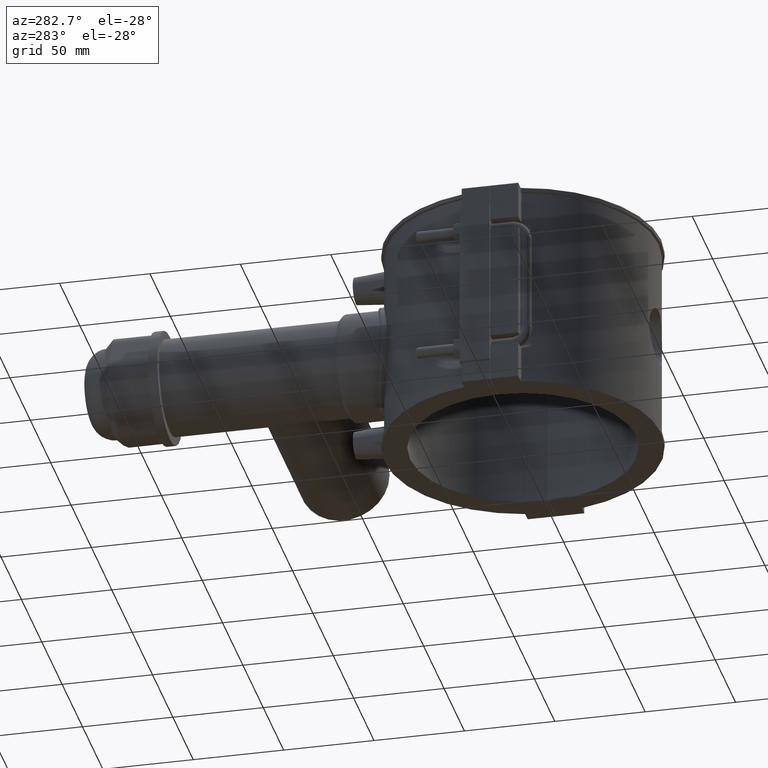
[diagram: clean part render]
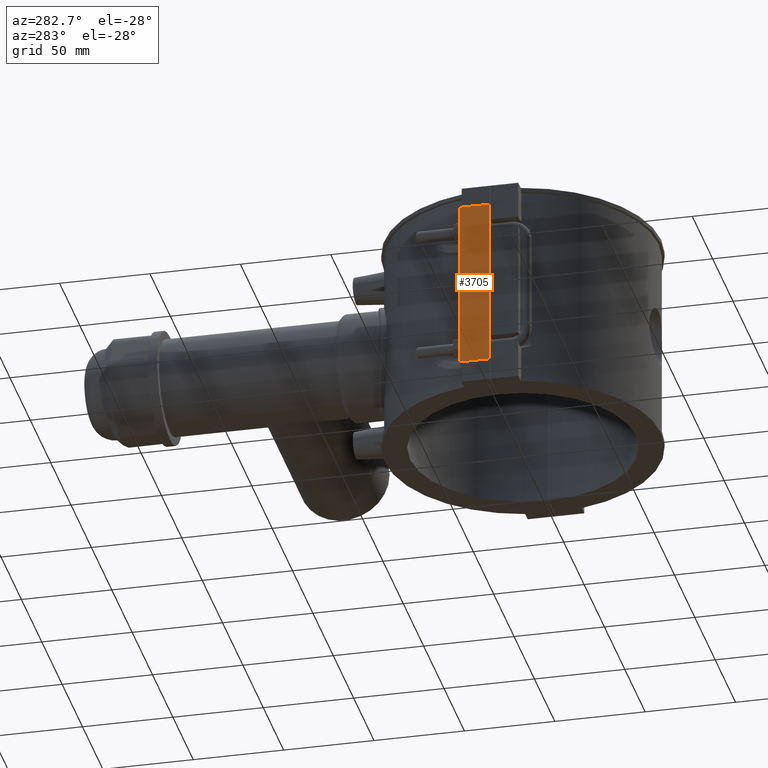
[diagram: same view with one face highlighted and labeled with its STEP entity id]
A machine part, auxiliary view. The second image highlights one B-rep face of the part: STEP entity #3705.
In plain terms, the highlighted planar face has unit normal (1, 0, 0).
Its self-contained STEP definition (entity closure, byte-faithful):
#160=LINE('',#6888,#459);
#163=LINE('',#6894,#462);
#166=LINE('',#6899,#465);
#179=LINE('',#6963,#478);
#459=VECTOR('',#4559,16.5750000000001);
#462=VECTOR('',#4564,16.5750000000001);
#465=VECTOR('',#4569,94.4);
#478=VECTOR('',#4588,94.4);
#969=FACE_OUTER_BOUND('',#1219,.T.);
#1219=EDGE_LOOP('',(#2848,#2849,#2850,#2851));
#1685=VERTEX_POINT('',#6885);
#1686=VERTEX_POINT('',#6887);
#1687=VERTEX_POINT('',#6891);
#1688=VERTEX_POINT('',#6893);
#2108=EDGE_CURVE('',#1686,#1685,#160,.T.);
#2111=EDGE_CURVE('',#1688,#1687,#163,.T.);
#2114=EDGE_CURVE('',#1686,#1687,#166,.T.);
#2133=EDGE_CURVE('',#1685,#1688,#179,.T.);
#2848=ORIENTED_EDGE('',*,*,#2114,.F.);
#2849=ORIENTED_EDGE('',*,*,#2108,.T.);
#2850=ORIENTED_EDGE('',*,*,#2133,.T.);
#2851=ORIENTED_EDGE('',*,*,#2111,.T.);
#3529=PLANE('',#3980);
#3705=ADVANCED_FACE('',(#969),#3529,.F.);
#3980=AXIS2_PLACEMENT_3D('',#6962,#4586,#4587);
#4559=DIRECTION('',(0.,-1.,0.));
#4564=DIRECTION('',(0.,1.,0.));
#4569=DIRECTION('',(0.,0.,1.));
#4586=DIRECTION('center_axis',(1.,0.,0.));
#4587=DIRECTION('ref_axis',(0.,1.,0.));
#4588=DIRECTION('',(0.,0.,1.));
#6885=CARTESIAN_POINT('',(-82.,0.0500000000000078,-47.2));
#6887=CARTESIAN_POINT('',(-82.,16.6250000000001,-47.2));
#6888=CARTESIAN_POINT('',(-82.,0.0500000000000078,-47.2));
#6891=CARTESIAN_POINT('',(-82.,16.6250000000001,47.2));
#6893=CARTESIAN_POINT('',(-82.,0.0500000000000078,47.2));
#6894=CARTESIAN_POINT('',(-82.,0.0500000000000078,47.2));
#6899=CARTESIAN_POINT('',(-82.,16.6250000000001,0.));
#6962=CARTESIAN_POINT('Origin',(-82.,0.0500000000000081,0.));
#6963=CARTESIAN_POINT('',(-82.,0.0500000000000081,0.));